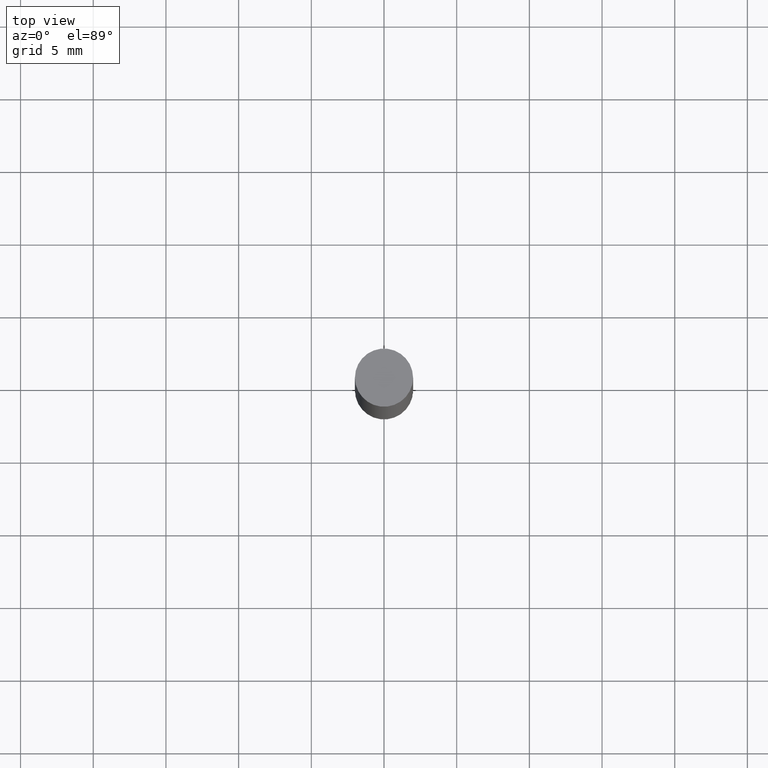
[diagram: clean part render]
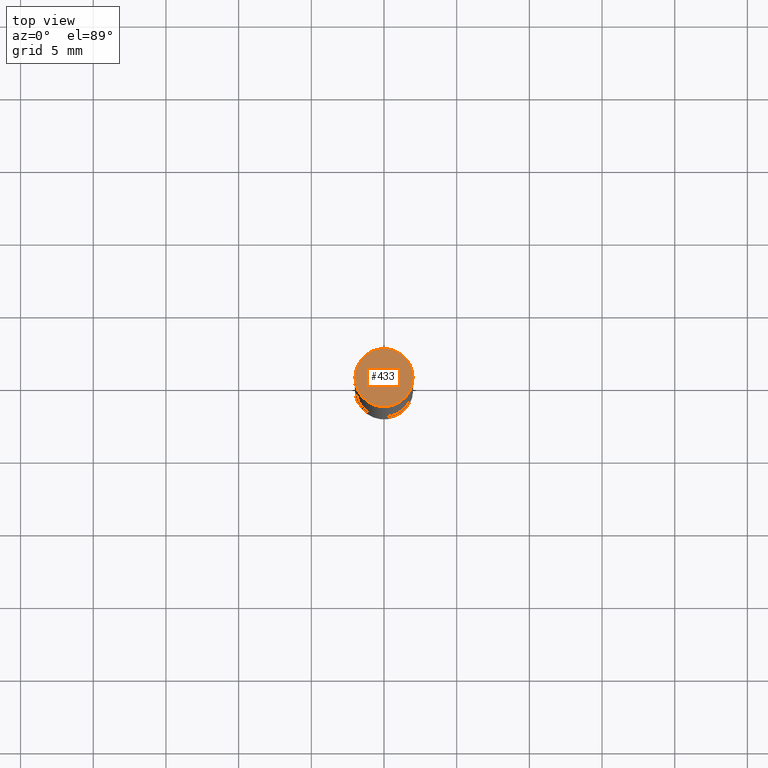
[diagram: same view with one face highlighted and labeled with its STEP entity id]
A machine part, top view. The second image highlights one B-rep face of the part: STEP entity #433.
In plain terms, the highlighted planar face has unit normal (0, 0, 1).
Its self-contained STEP definition (entity closure, byte-faithful):
#30 = DIRECTION ( 'NONE',  ( 1.000000000000000000, -6.982962677686265922E-15, 0.000000000000000000 ) ) ;
#36 = DIRECTION ( 'NONE',  ( -1.000000000000000000, 6.982962677686265922E-15, -9.839502134516470631E-33 ) ) ;
#37 = EDGE_LOOP ( 'NONE', ( #559, #128 ) ) ;
#89 = CARTESIAN_POINT ( 'NONE',  ( -0.07875000000000000056, -8.479142681445664027E-18, 2.731847993664282447E-16 ) ) ;
#108 = VERTEX_POINT ( 'NONE', #653 ) ;
#128 = ORIENTED_EDGE ( 'NONE', *, *, #560, .T. ) ;
#249 = CARTESIAN_POINT ( 'NONE',  ( 4.813905344975441835E-29, 1.386879813447681415E-18, 2.731847993664263218E-16 ) ) ;
#261 = DIRECTION ( 'NONE',  ( 1.000000000000000000, -6.982962677686265922E-15, 0.000000000000000000 ) ) ;
#310 = CARTESIAN_POINT ( 'NONE',  ( 4.813905344975441835E-29, 1.386879813447681415E-18, 2.731847993664263218E-16 ) ) ;
#354 = EDGE_CURVE ( 'NONE', #108, #424, #565, .T. ) ;
#365 = AXIS2_PLACEMENT_3D ( 'NONE', #310, #519, #261 ) ;
#408 = AXIS2_PLACEMENT_3D ( 'NONE', #502, #563, #36 ) ;
#424 = VERTEX_POINT ( 'NONE', #89 ) ;
#433 = ADVANCED_FACE ( 'NONE', ( #617 ), #613, .T. ) ;
#502 = CARTESIAN_POINT ( 'NONE',  ( 5.499083108678415648E-16, 0.07874999999999997280, 0.000000000000000000 ) ) ;
#506 = DIRECTION ( 'NONE',  ( 2.445468806185136597E-29, 3.492890411551752677E-15, 1.000000000000000000 ) ) ;
#519 = DIRECTION ( 'NONE',  ( 2.445468806185136597E-29, 3.492890411551752677E-15, 1.000000000000000000 ) ) ;
#559 = ORIENTED_EDGE ( 'NONE', *, *, #354, .T. ) ;
#560 = EDGE_CURVE ( 'NONE', #424, #108, #620, .T. ) ;
#563 = DIRECTION ( 'NONE',  ( 2.438088387897959769E-29, 3.492890411551753071E-15, 1.000000000000000000 ) ) ;
#565 = CIRCLE ( 'NONE', #657, 0.07875000000000000056 ) ;
#613 = PLANE ( 'NONE',  #408 ) ;
#617 = FACE_OUTER_BOUND ( 'NONE', #37, .T. ) ;
#620 = CIRCLE ( 'NONE', #365, 0.07875000000000000056 ) ;
#653 = CARTESIAN_POINT ( 'NONE',  ( 0.07875000000000000056, -5.485214310543458561E-16, 2.731847993664263218E-16 ) ) ;
#657 = AXIS2_PLACEMENT_3D ( 'NONE', #249, #506, #30 ) ;